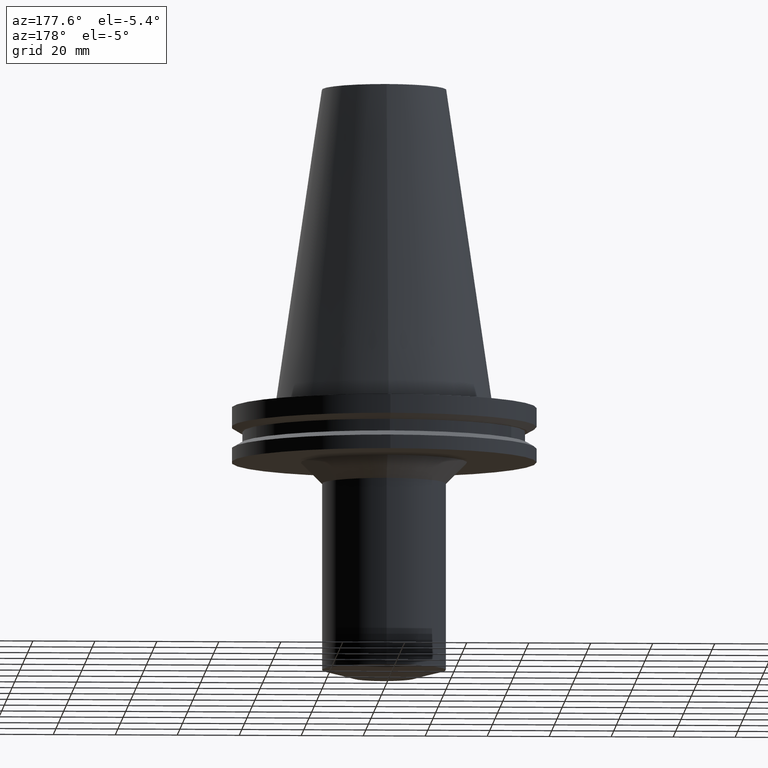
[diagram: clean part render]
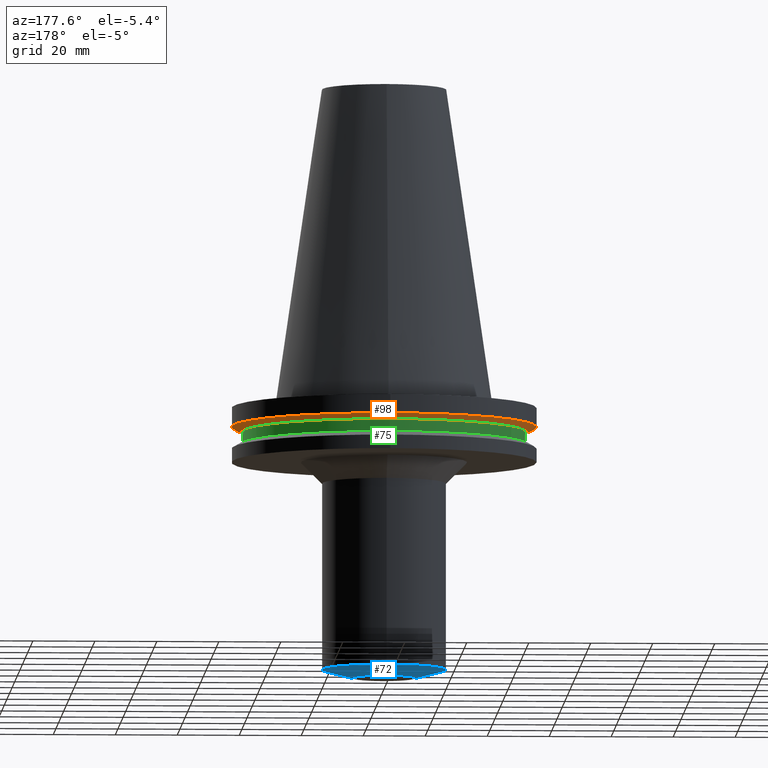
[diagram: same view with three faces highlighted in distinct colors, each labeled with its STEP entity id]
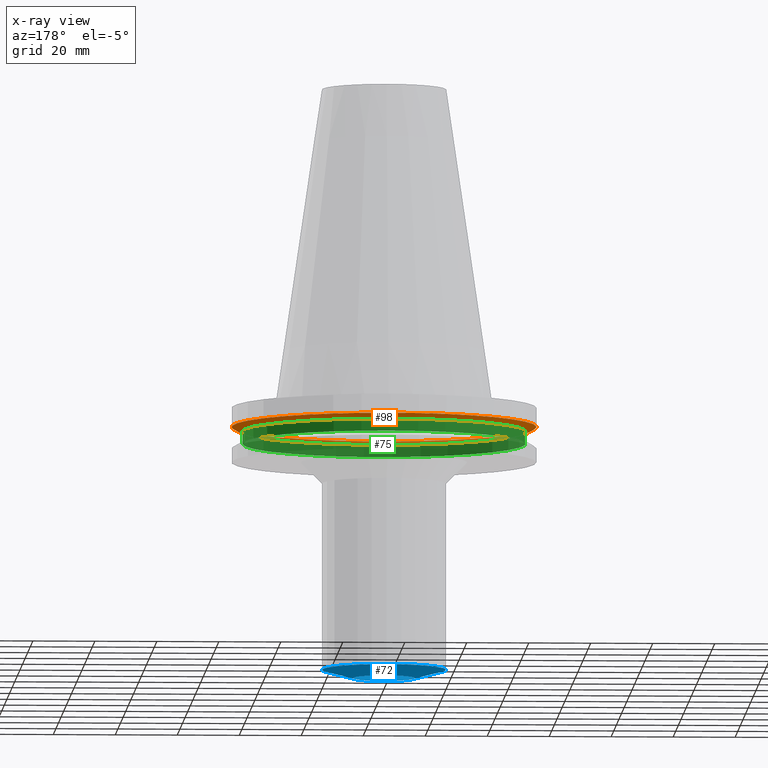
[diagram: x-ray of the same camera — body ghosted, the three highlighted faces saturated]
A machine part, auxiliary view with three faces highlighted in distinct colors.
The next image is the same camera in x-ray (body ghosted, the three faces saturated) — at least one of them is partly hidden behind the body in this view.
Their STEP definitions:

[orange] entity #98 — the highlighted conical surface has half-angle 60 deg.
#95=EDGE_CURVE('Unnamed[1]',#214,#214,#215,.T.);
#98=ADVANCED_FACE('Unnamed[1]',(#218,#219),#220,.T.);
#135=EDGE_CURVE('Unnamed[1]',#276,#276,#277,.T.);
#214=VERTEX_POINT('',#361);
#215=CIRCLE('',#362,49.2125);
#218=FACE_BOUND('',#366,.T.);
#219=FACE_BOUND('',#367,.T.);
#220=CONICAL_SURFACE('',#368,47.821518775,1.04719755103024);
#276=VERTEX_POINT('',#439);
#277=CIRCLE('',#440,46.43053755);
#361=CARTESIAN_POINT('',(4.64988177918915E-016,49.2125,-7.59383323));
#362=AXIS2_PLACEMENT_3D('',#509,#510,#511);
#366=EDGE_LOOP('',(#513));
#367=EDGE_LOOP('',(#514));
#368=AXIS2_PLACEMENT_3D('',#515,#516,#517);
#439=CARTESIAN_POINT('',(5.63337527607782E-016,46.43053755,-9.2));
#440=AXIS2_PLACEMENT_3D('',#579,#580,#581);
#509=CARTESIAN_POINT('',(4.64988177918915E-016,9.29976355837831E-016,-7.59383323));
#510=DIRECTION('',(6.12323399573677E-017,1.22464679914735E-016,-1.0));
#511=DIRECTION('',(-1.23259516440783E-032,1.0,1.22464679914735E-016));
#513=ORIENTED_EDGE('',*,*,#135,.F.);
#514=ORIENTED_EDGE('',*,*,#95,.T.);
#515=CARTESIAN_POINT('',(5.14162852763349E-016,1.0283257055267E-015,-8.39691661500001));
#516=DIRECTION('',(-6.12323399573677E-017,-1.22464679914735E-016,1.0));
#517=DIRECTION('',(-1.23259516440783E-032,1.0,1.22464679914735E-016));
#579=CARTESIAN_POINT('',(5.63337527607783E-016,1.12667505521557E-015,-9.2));
#580=DIRECTION('',(6.12323399573677E-017,1.22464679914735E-016,-1.0));
#581=DIRECTION('',(-1.23259516440783E-032,1.0,1.22464679914735E-016));

[blue] entity #72 — the highlighted conical surface has half-angle 75 deg.
#67=EDGE_CURVE('Unnamed[1]',#171,#171,#172,.T.);
#72=ADVANCED_FACE('Unnamed[1]',(#178,#179),#180,.T.);
#116=EDGE_CURVE('Unnamed[1]',#248,#248,#249,.T.);
#171=VERTEX_POINT('',#308);
#172=CIRCLE('',#309,19.9999999999964);
#178=FACE_BOUND('',#317,.T.);
#179=FACE_BOUND('',#318,.T.);
#180=CONICAL_SURFACE('',#319,14.9999999999964,1.30899693899575);
#248=VERTEX_POINT('',#403);
#249=CIRCLE('',#404,9.99999999999631);
#308=CARTESIAN_POINT('',(5.27948346178746E-015,19.9999999999964,-86.2205080756875));
#309=AXIS2_PLACEMENT_3D('',#463,#464,#465);
#317=EDGE_LOOP('',(#470));
#318=EDGE_LOOP('',(#471));
#319=AXIS2_PLACEMENT_3D('',#472,#473,#474);
#403=CARTESIAN_POINT('',(5.44355502220991E-015,9.99999999999632,-88.8999999999987));
#404=AXIS2_PLACEMENT_3D('',#548,#549,#550);
#463=CARTESIAN_POINT('',(5.27948346178746E-015,1.05589669235749E-014,-86.2205080756875));
#464=DIRECTION('',(6.12323399573676E-017,1.22464679914735E-016,-1.0));
#465=DIRECTION('',(-1.23259516440783E-032,1.0,1.22464679914735E-016));
#470=ORIENTED_EDGE('',*,*,#116,.F.);
#471=ORIENTED_EDGE('',*,*,#67,.T.);
#472=CARTESIAN_POINT('',(5.36151924199868E-015,1.07230384839974E-014,-87.5602540378431));
#473=DIRECTION('',(-6.12323399573677E-017,-1.22464679914735E-016,1.0));
#474=DIRECTION('',(-1.23259516440783E-032,1.0,1.22464679914735E-016));
#548=CARTESIAN_POINT('',(5.44355502220991E-015,1.08871100444198E-014,-88.8999999999987));
#549=DIRECTION('',(6.12323399573677E-017,1.22464679914735E-016,-1.0));
#550=DIRECTION('',(-1.23259516440783E-032,1.0,1.22464679914735E-016));

[green] entity #75 — the highlighted cylindrical surface (bore or boss wall) has radius 45.645 mm, axis along (0, 0, -1).
#75=ADVANCED_FACE('Unnamed[1]',(#183,#184),#185,.T.);
#90=EDGE_CURVE('Unnamed[1]',#206,#206,#207,.T.);
#108=EDGE_CURVE('Unnamed[1]',#235,#235,#236,.T.);
#183=FACE_BOUND('',#323,.T.);
#184=FACE_BOUND('',#324,.T.);
#185=CYLINDRICAL_SURFACE('',#325,45.645);
#206=VERTEX_POINT('',#351);
#207=CIRCLE('',#352,45.645);
#235=VERTEX_POINT('',#387);
#236=CIRCLE('',#388,45.645);
#323=EDGE_LOOP('',(#476));
#324=EDGE_LOOP('',(#477));
#325=AXIS2_PLACEMENT_3D('',#478,#479,#480);
#351=CARTESIAN_POINT('',(5.63337527607782E-016,45.645,-9.2));
#352=AXIS2_PLACEMENT_3D('',#500,#501,#502);
#387=CARTESIAN_POINT('',(7.98469713044073E-016,45.645,-13.04));
#388=AXIS2_PLACEMENT_3D('',#533,#534,#535);
#476=ORIENTED_EDGE('',*,*,#108,.F.);
#477=ORIENTED_EDGE('',*,*,#90,.T.);
#478=CARTESIAN_POINT('',(6.80903620325929E-016,1.36180724065186E-015,-11.12));
#479=DIRECTION('',(6.12323399573677E-017,1.22464679914735E-016,-1.0));
#480=DIRECTION('',(-1.23259516440783E-032,1.0,1.22464679914735E-016));
#500=CARTESIAN_POINT('',(5.63337527607783E-016,1.12667505521557E-015,-9.2));
#501=DIRECTION('',(6.12323399573677E-017,1.22464679914735E-016,-1.0));
#502=DIRECTION('',(-1.23259516440783E-032,1.0,1.22464679914735E-016));
#533=CARTESIAN_POINT('',(7.98469713044074E-016,1.59693942608815E-015,-13.04));
#534=DIRECTION('',(6.12323399573677E-017,1.22464679914735E-016,-1.0));
#535=DIRECTION('',(-1.23259516440783E-032,1.0,1.22464679914735E-016));